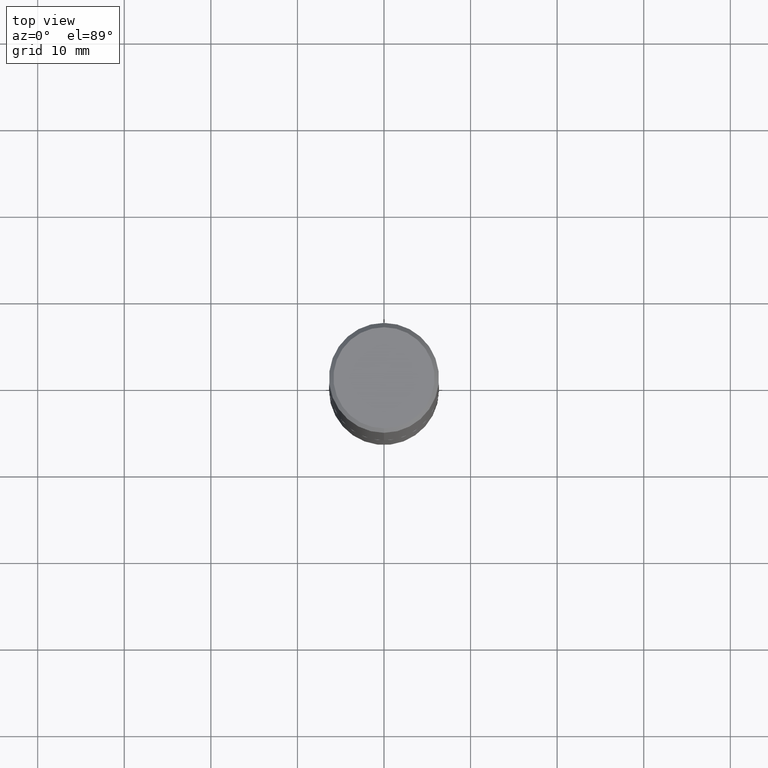
[diagram: clean part render]
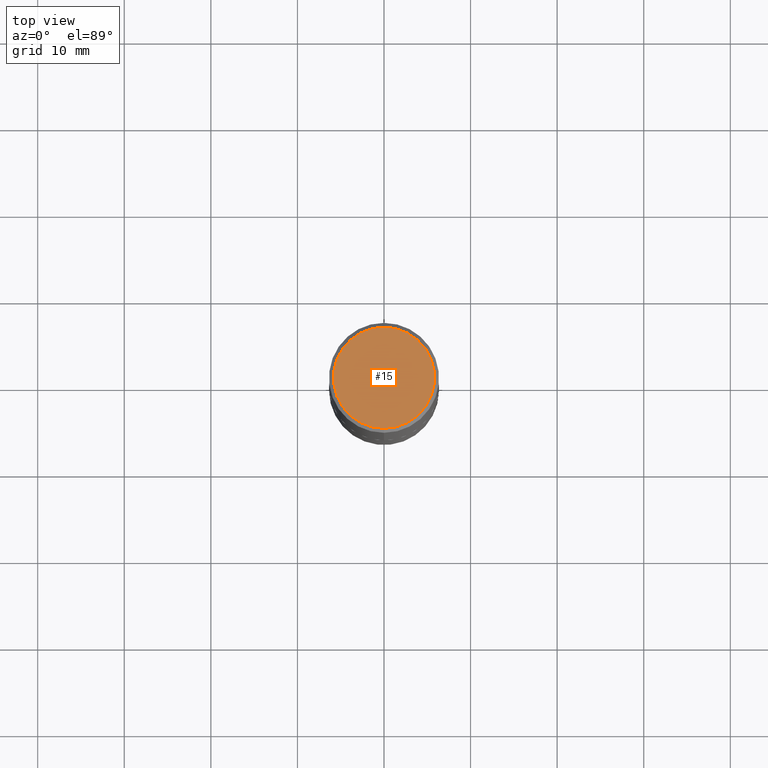
[diagram: same view with one face highlighted and labeled with its STEP entity id]
A machine part, top view. The second image highlights one B-rep face of the part: STEP entity #15.
In plain terms, the highlighted planar face has unit normal (0, -0, -1).
Its self-contained STEP definition (entity closure, byte-faithful):
#14 = ORIENTED_EDGE ( 'NONE', *, *, #188, .T. ) ;
#15 = ADVANCED_FACE ( 'NONE', ( #131 ), #259, .F. ) ;
#16 = CARTESIAN_POINT ( 'NONE',  ( 1.606081415867839095E-15, 0.2299999999999997047, -6.474688858455407103E-16 ) ) ;
#54 = DIRECTION ( 'NONE',  ( -2.444078991372175563E-29, 3.493471632758652550E-15, 1.000000000000000000 ) ) ;
#55 = DIRECTION ( 'NONE',  ( -6.982962677686265922E-15, -1.000000000000000000, 3.493471632758652550E-15 ) ) ;
#68 = VERTEX_POINT ( 'NONE', #111 ) ;
#111 = CARTESIAN_POINT ( 'NONE',  ( -1.646519519465166376E-15, -0.2299999999999997047, 1.115557654912385711E-15 ) ) ;
#131 = FACE_OUTER_BOUND ( 'NONE', #359, .T. ) ;
#133 = AXIS2_PLACEMENT_3D ( 'NONE', #304, #275, #201 ) ;
#141 = AXIS2_PLACEMENT_3D ( 'NONE', #388, #54, #55 ) ;
#142 = DIRECTION ( 'NONE',  ( 6.982962677686265922E-15, 1.000000000000000000, -3.493471632758652550E-15 ) ) ;
#182 = ORIENTED_EDGE ( 'NONE', *, *, #332, .T. ) ;
#188 = EDGE_CURVE ( 'NONE', #68, #369, #227, .T. ) ;
#194 = AXIS2_PLACEMENT_3D ( 'NONE', #16, #377, #142 ) ;
#200 = CARTESIAN_POINT ( 'NONE',  ( 1.675911042644703182E-15, 0.2299999999999997047, -4.914392961565924424E-16 ) ) ;
#201 = DIRECTION ( 'NONE',  ( -6.982962677686265922E-15, -1.000000000000000000, 3.493471632758652550E-15 ) ) ;
#227 = CIRCLE ( 'NONE', #133, 0.2299999999999997047 ) ;
#259 = PLANE ( 'NONE',  #194 ) ;
#275 = DIRECTION ( 'NONE',  ( -2.444078991372175563E-29, 3.493471632758652550E-15, 1.000000000000000000 ) ) ;
#304 = CARTESIAN_POINT ( 'NONE',  ( -7.626972843823584403E-45, 1.090169890898625670E-30, 3.120591793778966343E-16 ) ) ;
#332 = EDGE_CURVE ( 'NONE', #369, #68, #355, .T. ) ;
#355 = CIRCLE ( 'NONE', #141, 0.2299999999999997047 ) ;
#359 = EDGE_LOOP ( 'NONE', ( #182, #14 ) ) ;
#369 = VERTEX_POINT ( 'NONE', #200 ) ;
#377 = DIRECTION ( 'NONE',  ( 2.444078991372175283E-29, -3.493471632758652550E-15, -1.000000000000000000 ) ) ;
#388 = CARTESIAN_POINT ( 'NONE',  ( -7.626972843823584403E-45, 1.090169890898625670E-30, 3.120591793778966343E-16 ) ) ;